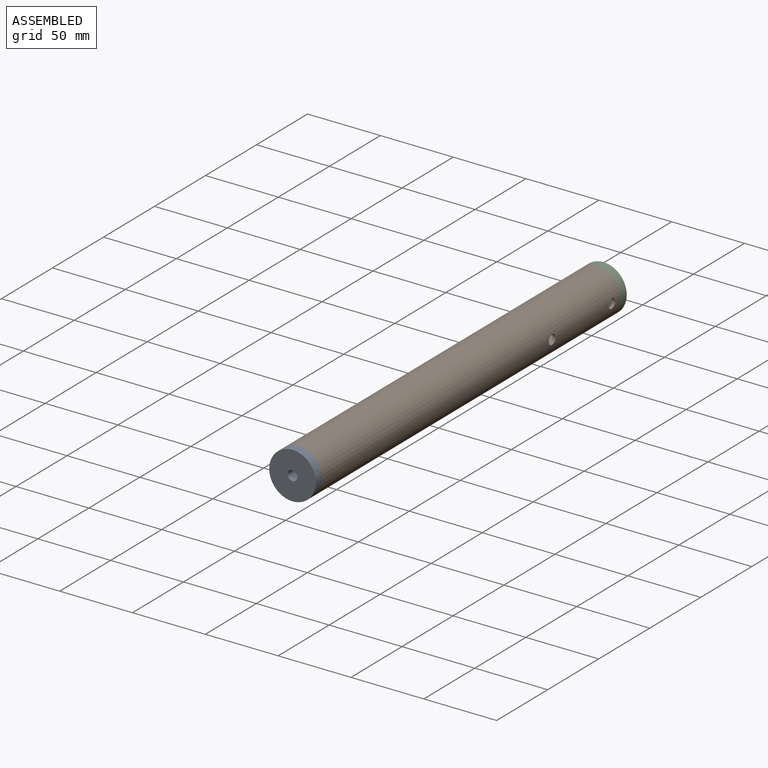
[diagram: assembled view]
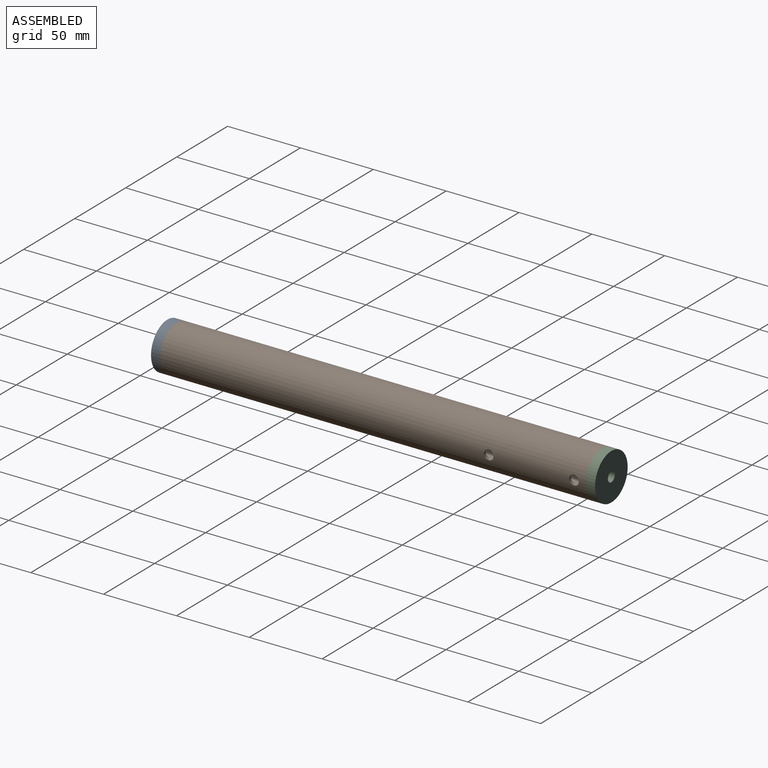
[diagram: assembled view, second angle]
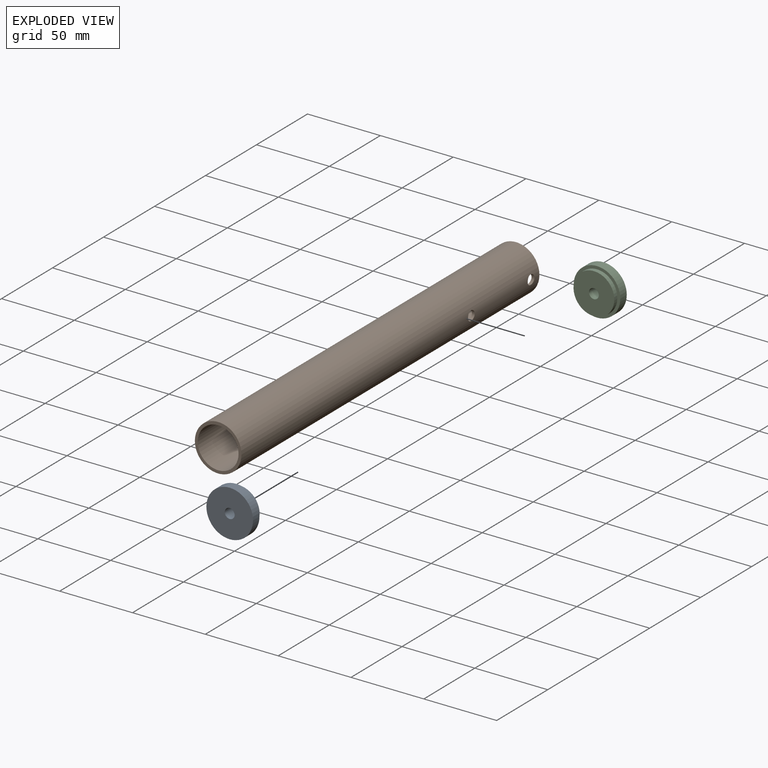
[diagram: exploded view]
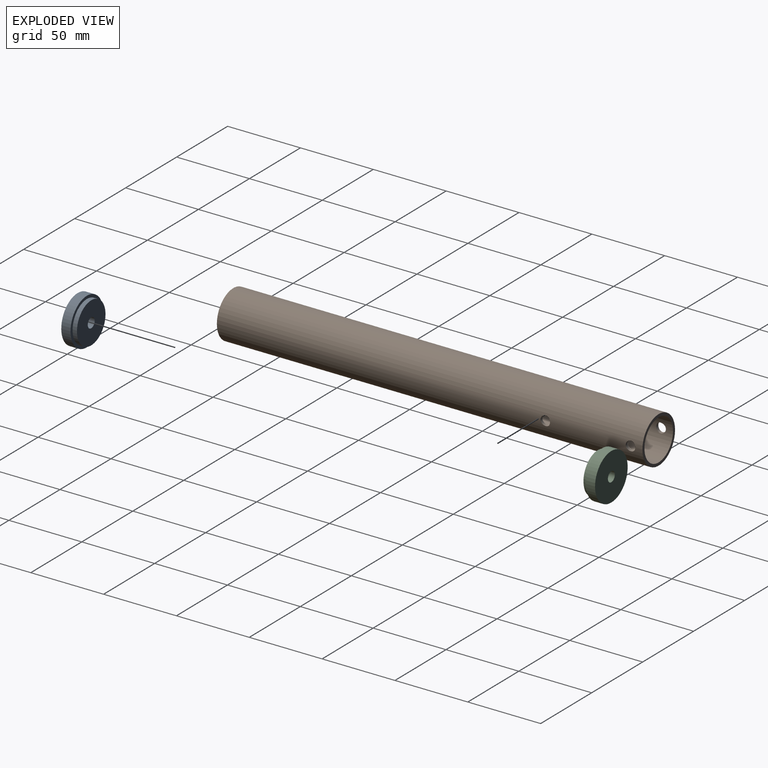
[diagram: exploded view, second angle]
ASSEMBLY  parts=3 mates=4
PART A: 6 faces, bbox 32x32x9.4 mm
  f0: cylinder r=16mm len=32mm, axis (0,0,-1), area 638.4mm2, adj f1,f2
  f1: plane 32x32mm, normal (0,0,1), area 188.5mm2, adj f0,f3
  f2: plane 32x32mm, normal (0,0,-1), area 767.9mm2, adj f0,f5
  f3: cylinder r=14mm len=28mm, axis (0,0,-1), area 263.9mm2, adj f1,f4
  f4: plane 28x28mm, normal (0,0,1), area 579.4mm2, adj f3,f5
  f5: cylinder r=3.4mm len=9.35mm, axis (0,0,-1), area 199.7mm2, adj f2,f4
PART B: 8 faces, bbox 32x292.1x32 mm
  f0: plane 32x32mm, normal (0,-1,0), area 188.5mm2, adj f2,f3
  f1: plane 32x32mm, normal (0,1,0), area 188.5mm2, adj f2,f3
  f2: cylinder r=16mm len=292.1mm, axis (0,1,0), area 29227.3mm2, adj f0,f1,f4,f5,f6,f7
  f3: cylinder r=14mm len=292.1mm, axis (0,1,0), area 25556.7mm2, adj f0,f1,f4,f5,f6,f7
  f4: cylinder r=3.3mm len=6.6mm, axis (1,0,0), area 42mm2, adj f2,f3
  f5: cylinder r=3.3mm len=6.6mm, axis (1,0,0), area 42mm2, adj f2,f3
  f6: cylinder r=3.3mm len=6.6mm, axis (1,0,0), area 42mm2, adj f2,f3
  f7: cylinder r=3.3mm len=6.6mm, axis (1,0,0), area 42mm2, adj f2,f3
PART C: same geometry as A
PLACE A rot(axis=(-1,0,0),90deg) t=(-55.55,-185.17,0.1)mm
PLACE B t=(-55.55,113.28,0.1)mm
PLACE C rot(axis=(1,0,0),90deg) t=(-55.55,119.63,0.1)mm
MATE cylindrical A.f0 <-> B.f2  axis (0,1,0) through (-55.55,-175.82,0.1)mm
MATE fastened B.f2 <-> A.f0  axis (0,-1,0) through (-55.55,-178.82,0.1)mm
MATE cylindrical C.f0 <-> B.f2  axis (0,-1,0) through (-55.55,113.28,0.1)mm
MATE fastened C.f0 <-> B.f2  axis (0,-1,0) through (-55.55,113.28,0.1)mm
